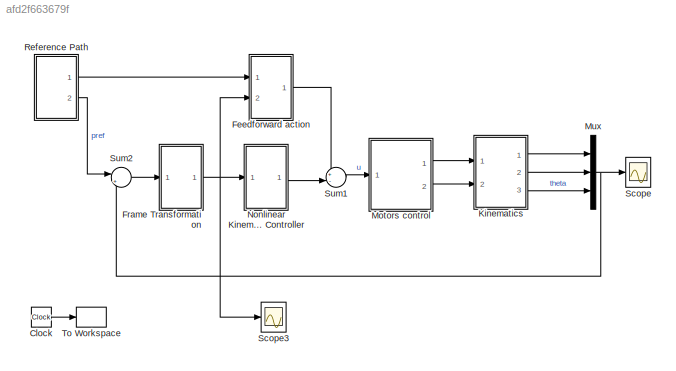
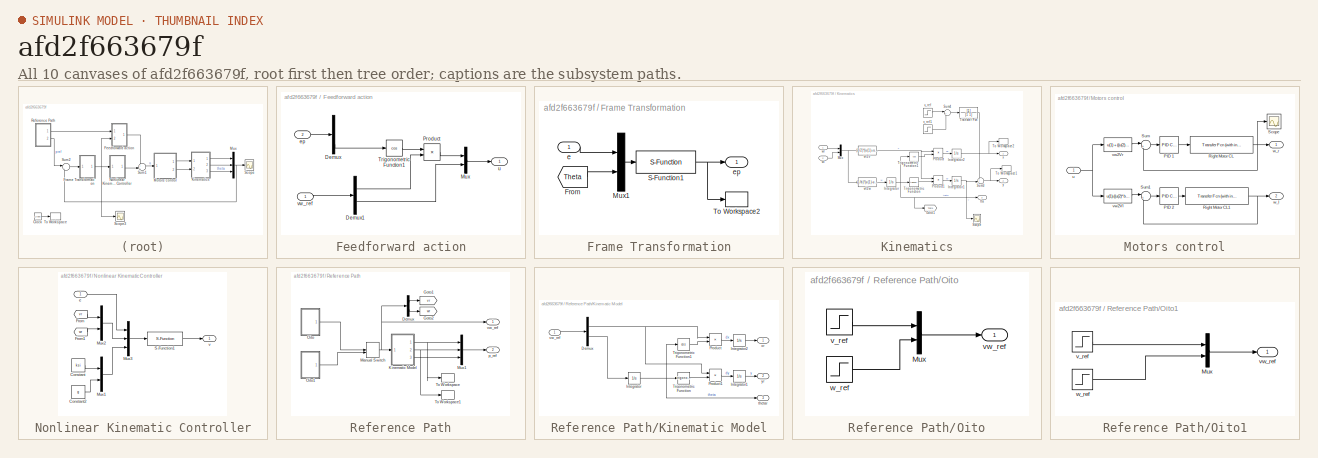
[diagram: thumbnail index - all 10 canvases of the model, root first then tree order]
MODEL slx_afd2f663679f
KIND model
CONFIG AbsTol = auto
CONFIG EnableMultiTasking = on
CONFIG FixedStep = auto
CONFIG MaxStep = auto
CONFIG MinStep = auto
CONFIG RelTol = 1e-3
CONFIG SampleTimeConstraint = Unconstrained
CONFIG Solver = ode4
CONFIG SolverName = ode4
CONFIG StartTime = 0.0
CONFIG StopTime = Tsim
BLOCK [Clock] Clock
  Decimation = 1
BLOCK [SubSystem] Feedforward action
  Ports = [2, 1]
  RequestExecContextInheritance = off
  Variant = off
BLOCK [Demux] Feedforward action/Demux
  DisplayOption = bar
  Outputs = 3
  Ports = [1, 3]
BLOCK [Demux] Feedforward action/Demux1
  DisplayOption = bar
  Outputs = 2
  Ports = [1, 2]
BLOCK [Mux] Feedforward action/Mux
  DisplayOption = bar
  Inputs = 2
  Ports = [2, 1]
BLOCK [Product] Feedforward action/Product
  InputSameDT = off
  OutDataTypeStr = Inherit: Inherit via internal rule
  Ports = [2, 1]
  RndMeth = Floor
  SaturateOnIntegerOverflow = off
BLOCK [Trigonometry] Feedforward action/Trigonometric Function1
  Operator = cos
  Ports = [1, 1]
BLOCK [Inport] Feedforward action/ep
  IconDisplay = Port number
  Port = 2
BLOCK [Outport] Feedforward action/u
  IconDisplay = Port number
BLOCK [Inport] Feedforward action/vw_ref
  IconDisplay = Port number
BLOCK [SubSystem] Frame Transformation
  Ports = [1, 1]
  RequestExecContextInheritance = off
  Variant = off
BLOCK [From] Frame Transformation/From
  GotoTag = Theta
  TagVisibility = global
BLOCK [Mux] Frame Transformation/Mux1
  DisplayOption = bar
  Inputs = 2
  Ports = [2, 1]
BLOCK [S-Function] Frame Transformation/S-Function1
  EnableBusSupport = off
  FunctionName = sfunc_Ep
  Parameters = Ts
  Ports = [1, 1]
  SFcnIsStateOwnerBlock = off
  SFunctionDeploymentMode = off
BLOCK [ToWorkspace] Frame Transformation/To Workspace2
  MaxDataPoints = inf
  Ports = [1]
  SampleTime = Ts
  VariableName = ep
BLOCK [Inport] Frame Transformation/e
  IconDisplay = Port number
BLOCK [Outport] Frame Transformation/ep
  IconDisplay = Port number
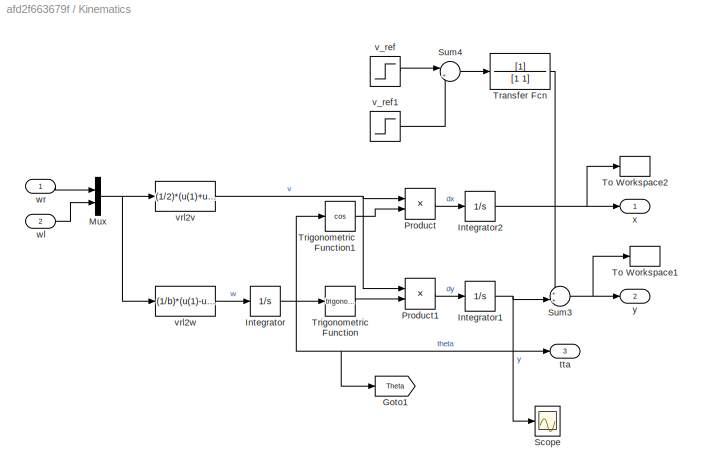
BLOCK [SubSystem] Kinematics
  Ports = [2, 3]
  RequestExecContextInheritance = off
  Variant = off
BLOCK [Goto] Kinematics/Goto1
  GotoTag = Theta
  TagVisibility = global
BLOCK [Integrator] Kinematics/Integrator
  InitialCondition = thetao
  Ports = [1, 1]
BLOCK [Integrator] Kinematics/Integrator1
  InitialCondition = yo
  Ports = [1, 1]
BLOCK [Integrator] Kinematics/Integrator2
  InitialCondition = xo
  Ports = [1, 1]
BLOCK [Mux] Kinematics/Mux
  DisplayOption = bar
  Inputs = 2
  Ports = [2, 1]
BLOCK [Product] Kinematics/Product
  InputSameDT = off
  OutDataTypeStr = Inherit: Inherit via internal rule
  Ports = [2, 1]
  RndMeth = Floor
  SaturateOnIntegerOverflow = off
BLOCK [Product] Kinematics/Product1
  InputSameDT = off
  OutDataTypeStr = Inherit: Inherit via internal rule
  Ports = [2, 1]
  RndMeth = Floor
  SaturateOnIntegerOverflow = off
BLOCK [Scope] Kinematics/Scope
  NumInputPorts = 1
  Ports = [1]
  ScopeSpecificationString = C++SS(StrPVP('Location','[572, 285, 1089, 715]'),StrPVP('Open','off'),StrPVP('ZoomMode','xonly'),MxPVP('AxesTitles',53,'struct(''axes1'',''%<SignalLabel>'')'),MxPVP('ScopeGraphics',56,'struct(''FigureColor'',''[0.5 0.5 0.5]'',''AxesColor'',''[0 0 0]'',''AxesTickColor'',''[1 1 1]'',''LineColors'',''[1 1 0;1 0 1;0 1 1;1 0 0;0 1 0;0 0 1]'',''LineStyles'',''-|-|-|-|-|-'',''LineWidths'',''[0.5 0.5 0.5 ...<+325ch>
BLOCK [Sum] Kinematics/Sum3
  IconShape = round
  InputSameDT = off
  Inputs = ++|
  OutDataTypeStr = Inherit: Inherit via internal rule
  Ports = [2, 1]
  SaturateOnIntegerOverflow = off
BLOCK [Sum] Kinematics/Sum4
  IconShape = round
  InputSameDT = off
  Inputs = |+-
  OutDataTypeStr = Inherit: Inherit via internal rule
  Ports = [2, 1]
  SaturateOnIntegerOverflow = off
BLOCK [ToWorkspace] Kinematics/To Workspace1
  MaxDataPoints = inf
  Ports = [1]
  SampleTime = Ts
  VariableName = y_real
BLOCK [ToWorkspace] Kinematics/To Workspace2
  MaxDataPoints = inf
  Ports = [1]
  SampleTime = Ts
  VariableName = x_real
BLOCK [TransferFcn] Kinematics/Transfer Fcn
  Denominator = [1 1]
BLOCK [Trigonometry] Kinematics/Trigonometric Function
  Ports = [1, 1]
BLOCK [Trigonometry] Kinematics/Trigonometric Function1
  Operator = cos
  Ports = [1, 1]
BLOCK [Outport] Kinematics/tta
  IconDisplay = Port number
  Port = 3
BLOCK [Step] Kinematics/v_ref
  After = -0.1
  SampleTime = 0
  Time = 25
BLOCK [Step] Kinematics/v_ref1
  After = -0.1
  SampleTime = 0
  Time = 26
BLOCK [Fcn] Kinematics/vrl2v
  Expr = (1/2)*(u(1)+u(2))
BLOCK [Fcn] Kinematics/vrl2w
  Expr = (1/b)*(u(1)-u(2))
BLOCK [Inport] Kinematics/wl
  IconDisplay = Port number
  Port = 2
BLOCK [Inport] Kinematics/wr
  IconDisplay = Port number
BLOCK [Outport] Kinematics/x
  IconDisplay = Port number
BLOCK [Outport] Kinematics/y
  IconDisplay = Port number
  Port = 2
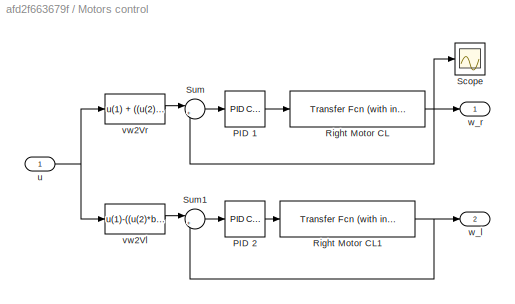
BLOCK [SubSystem] Motors control
  Ports = [1, 2]
  RequestExecContextInheritance = off
  Variant = off
BLOCK [Reference] Motors control/PID 1  REF=simulink/Continuous/PID Controller
  Ports = [1, 1]
  SourceBlock = simulink/Continuous/PID Controller
  SourceProductBaseCode = SL
  SourceProductName = Simulink
  SourceType = PID 1dof
BLOCK [Reference] Motors control/PID 2  REF=simulink/Continuous/PID Controller
  Ports = [1, 1]
  SourceBlock = simulink/Continuous/PID Controller
  SourceProductBaseCode = SL
  SourceProductName = Simulink
  SourceType = PID 1dof
BLOCK [Reference] Motors control/Right Motor CL  REF=simulink_extras/Additional
Linear/Transfer Fcn
(with initial outputs)
  Ports = [1, 1]
  SourceBlock = simulink_extras/Additional\nLinear/Transfer Fcn\n(with initial outputs)
  SourceProductBaseCode = SL
  SourceProductName = Simulink
  SourceType = Transfer Function with Initial Outputs
BLOCK [Reference] Motors control/Right Motor CL1  REF=simulink_extras/Additional
Linear/Transfer Fcn
(with initial outputs)
  Ports = [1, 1]
  SourceBlock = simulink_extras/Additional\nLinear/Transfer Fcn\n(with initial outputs)
  SourceProductBaseCode = SL
  SourceProductName = Simulink
  SourceType = Transfer Function with Initial Outputs
BLOCK [Scope] Motors control/Scope
  NumInputPorts = 1
  Ports = [1]
  ScopeSpecificationString = C++SS(StrPVP('Location','[1, 49, 1367, 727]'),StrPVP('Open','off'),StrPVP('ZoomMode','xonly'),MxPVP('AxesTitles',53,'struct(''axes1'',''%<SignalLabel>'')'),MxPVP('ScopeGraphics',56,'struct(''FigureColor'',''[0.5 0.5 0.5]'',''AxesColor'',''[0 0 0]'',''AxesTickColor'',''[1 1 1]'',''LineColors'',''[1 1 0;1 0 1;0 1 1;1 0 0;0 1 0;0 0 1]'',''LineStyles'',''-|-|-|-|-|-'',''LineWidths'',''[0.5 0.5 0.5 0.5...<+296ch>
BLOCK [Sum] Motors control/Sum
  IconShape = round
  InputSameDT = off
  Inputs = |+-
  OutDataTypeStr = Inherit: Inherit via internal rule
  Ports = [2, 1]
  SaturateOnIntegerOverflow = off
BLOCK [Sum] Motors control/Sum1
  IconShape = round
  InputSameDT = off
  Inputs = |+-
  OutDataTypeStr = Inherit: Inherit via internal rule
  Ports = [2, 1]
  SaturateOnIntegerOverflow = off
BLOCK [Inport] Motors control/u
  IconDisplay = Port number
BLOCK [Fcn] Motors control/vw2Vl
  Expr = u(1)-((u(2)*b)/2)
BLOCK [Fcn] Motors control/vw2Vr
  Expr = u(1) + ((u(2)*b)/2)
BLOCK [Outport] Motors control/w_l
  IconDisplay = Port number
  Port = 2
BLOCK [Outport] Motors control/w_r
  IconDisplay = Port number
BLOCK [Mux] Mux
  DisplayOption = bar
  Inputs = 3
  Ports = [3, 1]
BLOCK [SubSystem] Nonlinear Kinematic Controller
  Ports = [1, 1]
  RequestExecContextInheritance = off
  Variant = off
BLOCK [Constant] Nonlinear Kinematic Controller/Constant
  Value = ksi
BLOCK [Constant] Nonlinear Kinematic Controller/Constant2
  Value = g
BLOCK [From] Nonlinear Kinematic Controller/From
  GotoTag = vr
  TagVisibility = global
BLOCK [From] Nonlinear Kinematic Controller/From1
  GotoTag = wr
  TagVisibility = global
BLOCK [Mux] Nonlinear Kinematic Controller/Mux1
  DisplayOption = bar
  Inputs = 2
  Ports = [2, 1]
BLOCK [Mux] Nonlinear Kinematic Controller/Mux2
  DisplayOption = bar
  Inputs = 2
  Ports = [2, 1]
BLOCK [Mux] Nonlinear Kinematic Controller/Mux3
  DisplayOption = bar
  Inputs = 3
  Ports = [3, 1]
BLOCK [S-Function] Nonlinear Kinematic Controller/S-Function1
  EnableBusSupport = off
  FunctionName = sfunc_K
  Parameters = Ts
  Ports = [1, 1]
  SFcnIsStateOwnerBlock = off
  SFunctionDeploymentMode = off
BLOCK [Inport] Nonlinear Kinematic Controller/e
  IconDisplay = Port number
BLOCK [Outport] Nonlinear Kinematic Controller/v
  IconDisplay = Port number
BLOCK [SubSystem] Reference Path
  Ports = [0, 2]
  RequestExecContextInheritance = off
  Variant = off
BLOCK [Demux] Reference Path/Demux
  DisplayOption = bar
  Outputs = 2
  Ports = [1, 2]
BLOCK [Goto] Reference Path/Goto1
  GotoTag = vr
  TagVisibility = global
BLOCK [Goto] Reference Path/Goto2
  GotoTag = wr
  TagVisibility = global
BLOCK [SubSystem] Reference Path/Kinematic Model
  Ports = [1, 3]
  RequestExecContextInheritance = off
  Variant = off
BLOCK [Demux] Reference Path/Kinematic Model/Demux
  DisplayOption = bar
  Outputs = 2
  Ports = [1, 2]
BLOCK [Integrator] Reference Path/Kinematic Model/Integrator
  Ports = [1, 1]
BLOCK [Integrator] Reference Path/Kinematic Model/Integrator1
  Ports = [1, 1]
BLOCK [Integrator] Reference Path/Kinematic Model/Integrator2
  Ports = [1, 1]
BLOCK [Product] Reference Path/Kinematic Model/Product
  InputSameDT = off
  OutDataTypeStr = Inherit: Inherit via internal rule
  Ports = [2, 1]
  RndMeth = Floor
  SaturateOnIntegerOverflow = off
BLOCK [Product] Reference Path/Kinematic Model/Product1
  InputSameDT = off
  OutDataTypeStr = Inherit: Inherit via internal rule
  Ports = [2, 1]
  RndMeth = Floor
  SaturateOnIntegerOverflow = off
BLOCK [Trigonometry] Reference Path/Kinematic Model/Trigonometric Function
  Ports = [1, 1]
BLOCK [Trigonometry] Reference Path/Kinematic Model/Trigonometric Function1
  Operator = cos
  Ports = [1, 1]
BLOCK [Outport] Reference Path/Kinematic Model/thetar
  IconDisplay = Port number
  Port = 3
BLOCK [Inport] Reference Path/Kinematic Model/vw_ref
  IconDisplay = Port number
BLOCK [Outport] Reference Path/Kinematic Model/xr
  IconDisplay = Port number
BLOCK [Outport] Reference Path/Kinematic Model/yr
  IconDisplay = Port number
  Port = 2
BLOCK [ManualSwitch] Reference Path/Manual Switch
  CurrentSetting = 0
BLOCK [Mux] Reference Path/Mux1
  DisplayOption = bar
  Inputs = 3
  Ports = [3, 1]
BLOCK [SubSystem] Reference Path/Oito
  Ports = [0, 1]
  RequestExecContextInheritance = off
  Variant = off
BLOCK [Mux] Reference Path/Oito/Mux
  DisplayOption = bar
  Inputs = 2
  Ports = [2, 1]
BLOCK [Step] Reference Path/Oito/v_ref
  After = 0.2
  Before = 0.2
  SampleTime = 0
BLOCK [Outport] Reference Path/Oito/vw_ref
  IconDisplay = Port number
BLOCK [Step] Reference Path/Oito/w_ref
  After = -0.35
  Before = 0.35
  SampleTime = 0
  Time = 18
BLOCK [SubSystem] Reference Path/Oito1
  Ports = [0, 1]
  RequestExecContextInheritance = off
  Variant = off
BLOCK [Mux] Reference Path/Oito1/Mux
  DisplayOption = bar
  Inputs = 2
  Ports = [2, 1]
BLOCK [Step] Reference Path/Oito1/v_ref
  After = 0.2
  Before = 0.2
  SampleTime = 0
BLOCK [Outport] Reference Path/Oito1/vw_ref
  IconDisplay = Port number
BLOCK [Step] Reference Path/Oito1/w_ref
  After = 0.35
  Before = 0.35
  SampleTime = 0
  Time = 18
BLOCK [ToWorkspace] Reference Path/To Workspace
  MaxDataPoints = inf
  Ports = [1]
  SampleTime = Ts
  VariableName = xref
BLOCK [ToWorkspace] Reference Path/To Workspace1
  MaxDataPoints = inf
  Ports = [1]
  SampleTime = Ts
  VariableName = yref
BLOCK [Outport] Reference Path/p_ref
  IconDisplay = Port number
  Port = 2
BLOCK [Outport] Reference Path/vw_ref
  IconDisplay = Port number
BLOCK [Scope] Scope
  NumInputPorts = 1
  Ports = [1]
  ScopeSpecificationString = C++SS(StrPVP('Location','[318, 76, 1154, 703]'),StrPVP('Open','off'),StrPVP('ZoomMode','yonly'),MxPVP('AxesTitles',53,'struct(''axes1'',''%<SignalLabel>'')'),MxPVP('ScopeGraphics',56,'struct(''FigureColor'',''[0.5 0.5 0.5]'',''AxesColor'',''[0 0 0]'',''AxesTickColor'',''[1 1 1]'',''LineColors'',''[1 1 0;1 0 1;0 1 1;1 0 0;0 1 0;0 0 1]'',''LineStyles'',''-|-|-|-|-|-'',''LineWidths'',''[0.5 0.5 0.5 0...<+292ch>
BLOCK [Scope] Scope3
  NumInputPorts = 1
  Ports = [1]
  ScopeSpecificationString = C++SS(StrPVP('Location','[16, 130, 533, 560]'),StrPVP('Open','off'),StrPVP('ZoomMode','yonly'),MxPVP('AxesTitles',53,'struct(''axes1'',''%<SignalLabel>'')'),MxPVP('ScopeGraphics',56,'struct(''FigureColor'',''[0.5 0.5 0.5]'',''AxesColor'',''[0 0 0]'',''AxesTickColor'',''[1 1 1]'',''LineColors'',''[1 1 0;1 0 1;0 1 1;1 0 0;0 1 0;0 0 1]'',''LineStyles'',''-|-|-|-|-|-'',''LineWidths'',''[0.5 0.5 0.5 0....<+323ch>
BLOCK [Sum] Sum1
  IconShape = round
  InputSameDT = off
  Inputs = +-|
  OutDataTypeStr = Inherit: Inherit via internal rule
  Ports = [2, 1]
  SaturateOnIntegerOverflow = off
BLOCK [Sum] Sum2
  IconShape = round
  InputSameDT = off
  Inputs = |+-
  OutDataTypeStr = Inherit: Inherit via internal rule
  Ports = [2, 1]
  SaturateOnIntegerOverflow = off
BLOCK [ToWorkspace] To Workspace
  MaxDataPoints = inf
  Ports = [1]
  SampleTime = Ts
  VariableName = t
LINE Clock:1 -> To Workspace:1
LINE Feedforward action/Demux1:1 -> Feedforward action/Product:2
LINE Feedforward action/Demux1:2 -> Feedforward action/Mux:2
LINE Feedforward action/Demux:3 -> Feedforward action/Trigonometric Function1:1
LINE Feedforward action/Mux:1 -> Feedforward action/u:1
LINE Feedforward action/Product:1 -> Feedforward action/Mux:1
LINE Feedforward action/Trigonometric Function1:1 -> Feedforward action/Product:1
LINE Feedforward action/ep:1 -> Feedforward action/Demux:1
LINE Feedforward action/vw_ref:1 -> Feedforward action/Demux1:1
LINE Feedforward action:1 -> Sum1:1
LINE Frame Transformation/From:1 -> Frame Transformation/Mux1:2
LINE Frame Transformation/Mux1:1 -> Frame Transformation/S-Function1:1
NET Frame Transformation/S-Function1:1 -> Frame Transformation/To Workspace2:1, Frame Transformation/ep:1
LINE Frame Transformation/e:1 -> Frame Transformation/Mux1:1
NET Frame Transformation:1 -> Feedforward action:2, Nonlinear Kinematic Controller:1, Scope3:1
NET Kinematics/Integrator1:1 -> Kinematics/Scope:1, Kinematics/Sum3:2
NET Kinematics/Integrator2:1 -> Kinematics/To Workspace2:1, Kinematics/x:1
NET Kinematics/Integrator:1 -> Kinematics/Goto1:1, Kinematics/Trigonometric Function1:1, Kinematics/Trigonometric Function:1, Kinematics/tta:1
NET Kinematics/Mux:1 -> Kinematics/vrl2v:1, Kinematics/vrl2w:1
LINE Kinematics/Product1:1 -> Kinematics/Integrator1:1
LINE Kinematics/Product:1 -> Kinematics/Integrator2:1
NET Kinematics/Sum3:1 -> Kinematics/To Workspace1:1, Kinematics/y:1
LINE Kinematics/Sum4:1 -> Kinematics/Transfer Fcn:1
LINE Kinematics/Transfer Fcn:1 -> Kinematics/Sum3:1
LINE Kinematics/Trigonometric Function1:1 -> Kinematics/Product:2
LINE Kinematics/Trigonometric Function:1 -> Kinematics/Product1:2
LINE Kinematics/v_ref1:1 -> Kinematics/Sum4:2
LINE Kinematics/v_ref:1 -> Kinematics/Sum4:1
NET Kinematics/vrl2v:1 -> Kinematics/Product1:1, Kinematics/Product:1
LINE Kinematics/vrl2w:1 -> Kinematics/Integrator:1
LINE Kinematics/wl:1 -> Kinematics/Mux:2
LINE Kinematics/wr:1 -> Kinematics/Mux:1
LINE Kinematics:1 -> Mux:1
LINE Kinematics:2 -> Mux:2
LINE Kinematics:3 -> Mux:3
LINE Motors control/PID 1:1 -> Motors control/Right Motor CL:1
LINE Motors control/PID 2:1 -> Motors control/Right Motor CL1:1
NET Motors control/Right Motor CL1:1 -> Motors control/Sum1:2, Motors control/w_l:1
NET Motors control/Right Motor CL:1 -> Motors control/Scope:1, Motors control/Sum:2, Motors control/w_r:1
LINE Motors control/Sum1:1 -> Motors control/PID 2:1
LINE Motors control/Sum:1 -> Motors control/PID 1:1
NET Motors control/u:1 -> Motors control/vw2Vl:1, Motors control/vw2Vr:1
LINE Motors control/vw2Vl:1 -> Motors control/Sum1:1
LINE Motors control/vw2Vr:1 -> Motors control/Sum:1
LINE Motors control:1 -> Kinematics:1
LINE Motors control:2 -> Kinematics:2
NET Mux:1 -> Scope:1, Sum2:2
LINE Nonlinear Kinematic Controller/Constant2:1 -> Nonlinear Kinematic Controller/Mux1:2
LINE Nonlinear Kinematic Controller/Constant:1 -> Nonlinear Kinematic Controller/Mux1:1
LINE Nonlinear Kinematic Controller/From1:1 -> Nonlinear Kinematic Controller/Mux2:2
LINE Nonlinear Kinematic Controller/From:1 -> Nonlinear Kinematic Controller/Mux2:1
LINE Nonlinear Kinematic Controller/Mux1:1 -> Nonlinear Kinematic Controller/Mux3:3
LINE Nonlinear Kinematic Controller/Mux2:1 -> Nonlinear Kinematic Controller/Mux3:2
LINE Nonlinear Kinematic Controller/Mux3:1 -> Nonlinear Kinematic Controller/S-Function1:1
LINE Nonlinear Kinematic Controller/S-Function1:1 -> Nonlinear Kinematic Controller/v:1
LINE Nonlinear Kinematic Controller/e:1 -> Nonlinear Kinematic Controller/Mux3:1
LINE Nonlinear Kinematic Controller:1 -> Sum1:2
LINE Reference Path/Demux:1 -> Reference Path/Goto1:1
LINE Reference Path/Demux:2 -> Reference Path/Goto2:1
NET Reference Path/Kinematic Model/Demux:1 -> Reference Path/Kinematic Model/Product1:1, Reference Path/Kinematic Model/Product:1
LINE Reference Path/Kinematic Model/Demux:2 -> Reference Path/Kinematic Model/Integrator:1
LINE Reference Path/Kinematic Model/Integrator1:1 -> Reference Path/Kinematic Model/yr:1
LINE Reference Path/Kinematic Model/Integrator2:1 -> Reference Path/Kinematic Model/xr:1
NET Reference Path/Kinematic Model/Integrator:1 -> Reference Path/Kinematic Model/Trigonometric Function1:1, Reference Path/Kinematic Model/Trigonometric Function:1, Reference Path/Kinematic Model/thetar:1
LINE Reference Path/Kinematic Model/Product1:1 -> Reference Path/Kinematic Model/Integrator1:1
LINE Reference Path/Kinematic Model/Product:1 -> Reference Path/Kinematic Model/Integrator2:1
LINE Reference Path/Kinematic Model/Trigonometric Function1:1 -> Reference Path/Kinematic Model/Product:2
LINE Reference Path/Kinematic Model/Trigonometric Function:1 -> Reference Path/Kinematic Model/Product1:2
LINE Reference Path/Kinematic Model/vw_ref:1 -> Reference Path/Kinematic Model/Demux:1
NET Reference Path/Kinematic Model:1 -> Reference Path/Mux1:1, Reference Path/To Workspace:1
NET Reference Path/Kinematic Model:2 -> Reference Path/Mux1:2, Reference Path/To Workspace1:1
LINE Reference Path/Kinematic Model:3 -> Reference Path/Mux1:3
NET Reference Path/Manual Switch:1 -> Reference Path/Demux:1, Reference Path/Kinematic Model:1, Reference Path/vw_ref:1
LINE Reference Path/Mux1:1 -> Reference Path/p_ref:1
LINE Reference Path/Oito/Mux:1 -> Reference Path/Oito/vw_ref:1
LINE Reference Path/Oito/v_ref:1 -> Reference Path/Oito/Mux:1
LINE Reference Path/Oito/w_ref:1 -> Reference Path/Oito/Mux:2
LINE Reference Path/Oito1/Mux:1 -> Reference Path/Oito1/vw_ref:1
LINE Reference Path/Oito1/v_ref:1 -> Reference Path/Oito1/Mux:1
LINE Reference Path/Oito1/w_ref:1 -> Reference Path/Oito1/Mux:2
LINE Reference Path/Oito1:1 -> Reference Path/Manual Switch:2
LINE Reference Path/Oito:1 -> Reference Path/Manual Switch:1
LINE Reference Path:1 -> Feedforward action:1
LINE Reference Path:2 -> Sum2:1
LINE Sum1:1 -> Motors control:1
LINE Sum2:1 -> Frame Transformation:1
note: NET lines group one-source signal fan-out (src -> all destinations, sorted); 1:1 wires keep LINE
